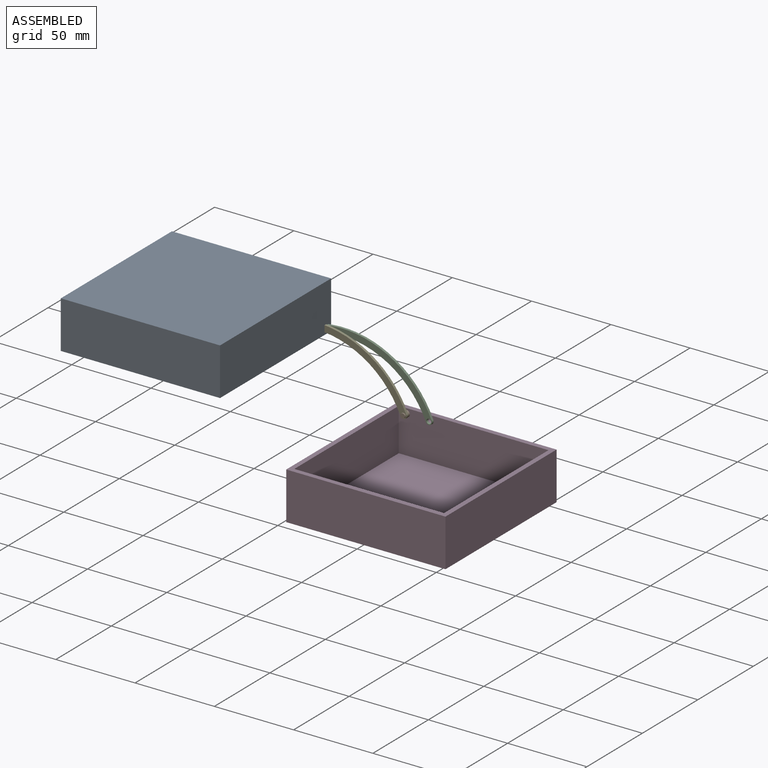
[diagram: assembled view]
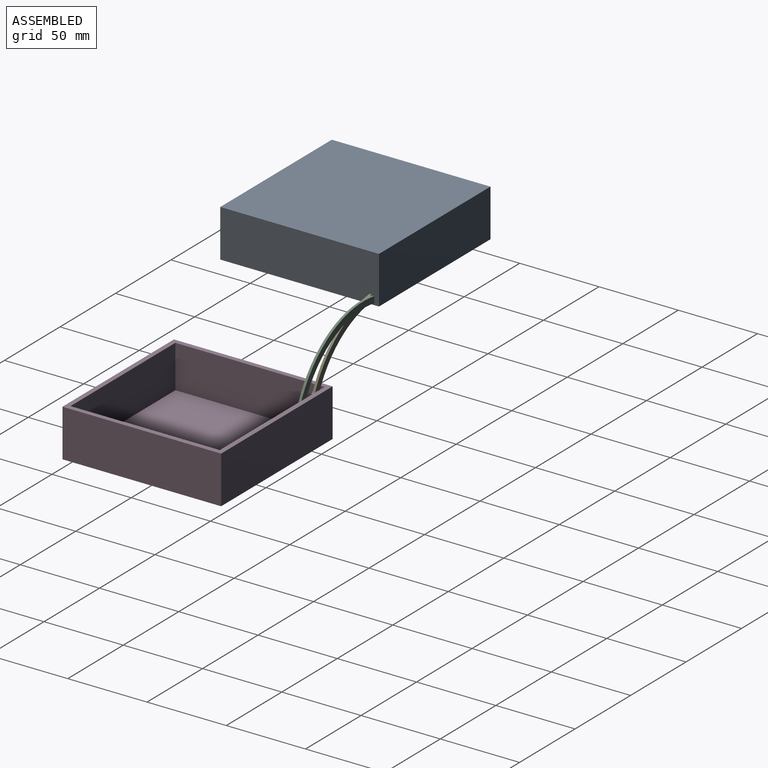
[diagram: assembled view, second angle]
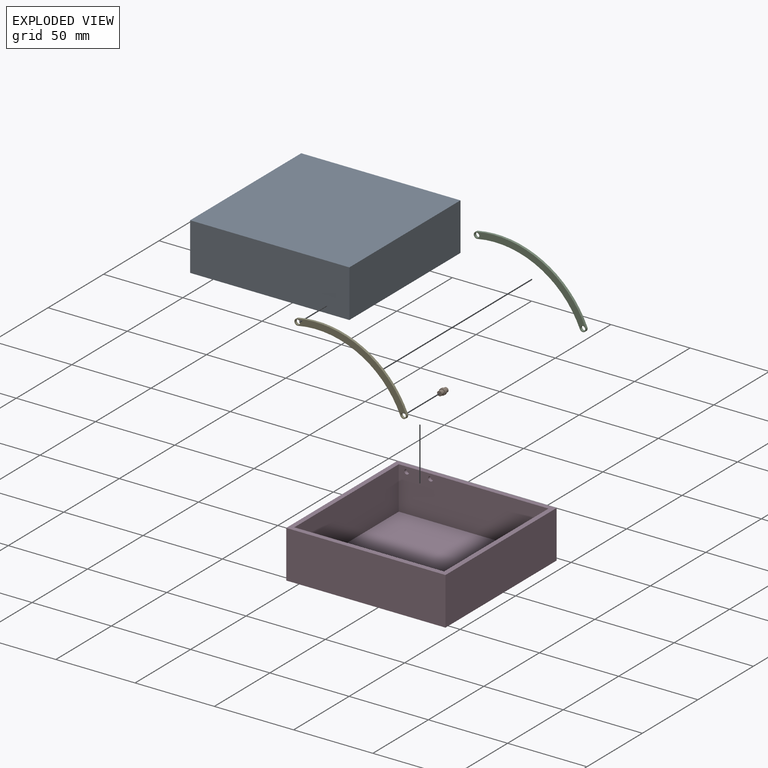
[diagram: exploded view]
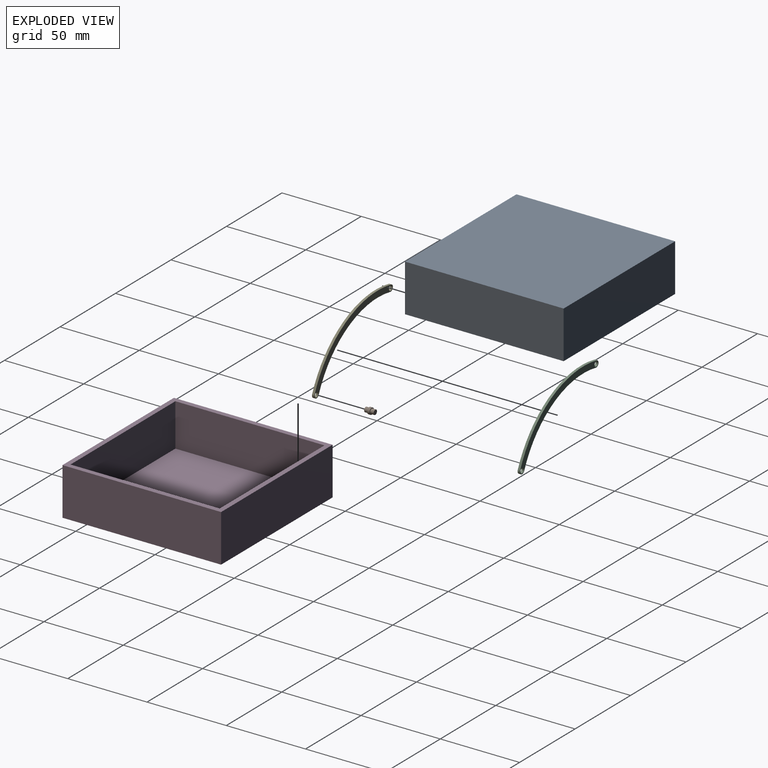
[diagram: exploded view, second angle]
ASSEMBLY  parts=5 mates=9
PART A: 16 faces, bbox 100.5x100.1x30 mm
  f0: plane 94.45x27mm, normal (0,-1,0), area 2542.3mm2, adj f1,f7,f9,f10,f11,f13
  f1: plane 100.45x100.1mm, normal (0,0,1), area 1167.3mm2, adj f0,f2,f3,f4,f5,f7,f8,f9
  f2: plane 100.1x30mm, normal (-1,0,0), area 3003mm2, adj f1,f3,f5,f6
  f3: plane 100.45x30mm, normal (0,-1,0), area 3013.5mm2, adj f1,f2,f4,f6
  f4: plane 100.1x30mm, normal (1,0,0), area 3003mm2, adj f1,f3,f5,f6
  f5: plane 100.45x30mm, normal (0,1,0), area 3013.5mm2, adj f1,f2,f4,f6
  f6: plane 100.45x100.1mm, normal (0,0,-1), area 10055mm2, adj f2,f3,f4,f5
  f7: plane 94.1x27mm, normal (1,0,0), area 2540.7mm2, adj f0,f1,f8,f10,f15
  f8: plane 94.45x27mm, normal (0,1,0), area 2550.1mm2, adj f1,f7,f9,f10
  f9: plane 94.1x27mm, normal (-1,0,0), area 2540.7mm2, adj f0,f1,f8,f10
  f10: plane 94.45x94.1mm, normal (0,0,1), area 8887.7mm2, adj f0,f7,f8,f9
  f11: cylinder r=1.5mm len=3mm, axis (0,-1,0), area 18.8mm2, adj f0,f12
  f12: plane 3x3mm, normal (0,-1,0), area 7.1mm2, adj f11
  f13: cylinder r=1.5mm len=3mm, axis (0,-1,0), area 18.8mm2, adj f0,f14,f15
  f14: plane 3x3mm, normal (0,-1,0), area 7.1mm2, adj f13
  f15: plane 3x2.5mm, normal (0,1,0), area 6.3mm2, adj f7,f13
PART B: 7 faces, bbox 4x6x4 mm
  f0: cylinder r=1.5mm len=3mm, axis (0,1,0), area 21.2mm2, adj f1,f3
  f1: plane 3x3mm, normal (0,1,0), area 7.1mm2, adj f0
  f2: cylinder r=2mm len=4mm, axis (0,-1,0), area 18.8mm2, adj f3,f4
  f3: plane 4x4mm, normal (0,1,0), area 5.5mm2, adj f0,f2
  f4: plane 4x4mm, normal (0,-1,0), area 5.5mm2, adj f2,f6
  f5: plane 3x3mm, normal (0,-1,0), area 7.1mm2, adj f6
  f6: cylinder r=1.5mm len=3mm, axis (0,1,0), area 21.2mm2, adj f4,f5
PART C: 8 faces, bbox 79.5x1.5x18.9 mm
  f0: cylinder r=58mm len=72.94mm, axis (0,1,0), area 118.4mm2, adj f1,f3,f4,f5
  f1: cylinder r=2mm len=3.62mm, axis (0,1,0), area 9.5mm2, adj f0,f2,f4,f5
  f2: cylinder r=62mm len=77.97mm, axis (0,1,0), area 126.6mm2, adj f1,f3,f4,f5
  f3: cylinder r=2mm len=3.51mm, axis (0,1,0), area 9.5mm2, adj f0,f2,f4,f5
  f4: plane 79.48x18.92mm, normal (0,-1,0), area 325.3mm2, adj f0,f1,f2,f3,f6,f7
  f5: plane 79.48x18.92mm, normal (0,1,0), area 325.3mm2, adj f0,f1,f2,f3,f6,f7
  f6: cylinder r=1.5mm len=3mm, axis (0,-1,0), area 14.1mm2, adj f4,f5
  f7: cylinder r=1.5mm len=3mm, axis (0,-1,0), area 14.1mm2, adj f4,f5
PART D: 15 faces, bbox 100.5x100.1x30 mm
  f0: plane 100.45x100.1mm, normal (0,0,1), area 1167.3mm2, adj f1,f2,f3,f4,f6,f7,f8,f9
  f1: plane 100.1x30mm, normal (-1,0,0), area 3003mm2, adj f0,f2,f4,f5
  f2: plane 100.45x30mm, normal (0,-1,0), area 3013.5mm2, adj f0,f1,f3,f5
  f3: plane 100.1x30mm, normal (1,0,0), area 3003mm2, adj f0,f2,f4,f5
  f4: plane 100.45x30mm, normal (0,1,0), area 3013.5mm2, adj f0,f1,f3,f5
  f5: plane 100.45x100.1mm, normal (0,0,-1), area 10055mm2, adj f1,f2,f3,f4
  f6: plane 94.1x27mm, normal (1,0,0), area 2540.7mm2, adj f0,f7,f9,f10
  f7: plane 94.45x27mm, normal (0,1,0), area 2550.1mm2, adj f0,f6,f8,f10
  f8: plane 94.1x27mm, normal (-1,0,0), area 2540.7mm2, adj f0,f7,f9,f10
  f9: plane 94.45x27mm, normal (0,-1,0), area 2536mm2, adj f0,f6,f8,f10,f11,f13
  f10: plane 94.45x94.1mm, normal (0,0,1), area 8887.7mm2, adj f6,f7,f8,f9
  f11: cylinder r=1.5mm len=3mm, axis (0,-1,0), area 18.8mm2, adj f9,f12
  f12: plane 3x3mm, normal (0,-1,0), area 7.1mm2, adj f11
  f13: cylinder r=1.5mm len=3mm, axis (0,-1,0), area 18.8mm2, adj f9,f14
  f14: plane 3x3mm, normal (0,-1,0), area 7.1mm2, adj f13
PART E: same geometry as C
PLACE A rot(axis=(0,1,0),180deg) t=(-44.47,-9.95,93.56)mm
PLACE B rot(axis=(0,1,0),90deg) t=(5.3,89.4,30.99)mm
PLACE C rot(axis=(0,-1,0),149.8deg) t=(38.18,87.15,51.85)mm
PLACE D t=(-2.7,-9.95,3.99)mm fixed
PLACE E rot(axis=(0,-1,0),149.8deg) t=(23.18,85.65,51.85)mm
MATE planar A.f0 <-> C.f5  axis (0,-1,0) through (-94.8,87.15,77.09)mm
MATE planar B.f2 <-> D.f9  axis (0,1,0) through (5.3,87.15,30.99)mm
MATE planar E.f5 <-> B.f2  axis (0,1,0) through (-23.92,85.65,56.52)mm
MATE cylindrical E.f1 <-> D.f13  axis (0,-1,0) through (5.3,84.15,30.99)mm
MATE cylindrical B.f0 <-> D.f13  axis (0,1,0) through (5.3,89.4,30.99)mm
MATE planar D.f9 <-> C.f5  axis (0,-1,0) through (47.72,87.15,20.43)mm
MATE cylindrical A.f13 <-> C.f3  axis (0,-1,0) through (-46.47,87.15,66.32)mm
MATE cylindrical E.f3 <-> A.f11  axis (0,-1,0) through (-61.47,84.15,66.32)mm
MATE cylindrical C.f1 <-> D.f11  axis (0,-1,0) through (20.3,85.65,30.99)mm
